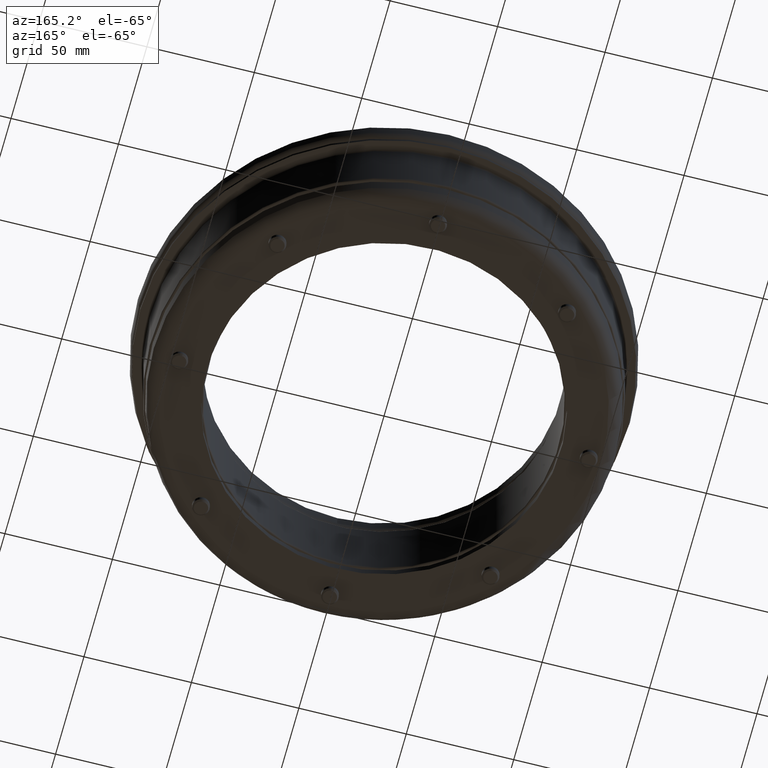
[diagram: clean part render]
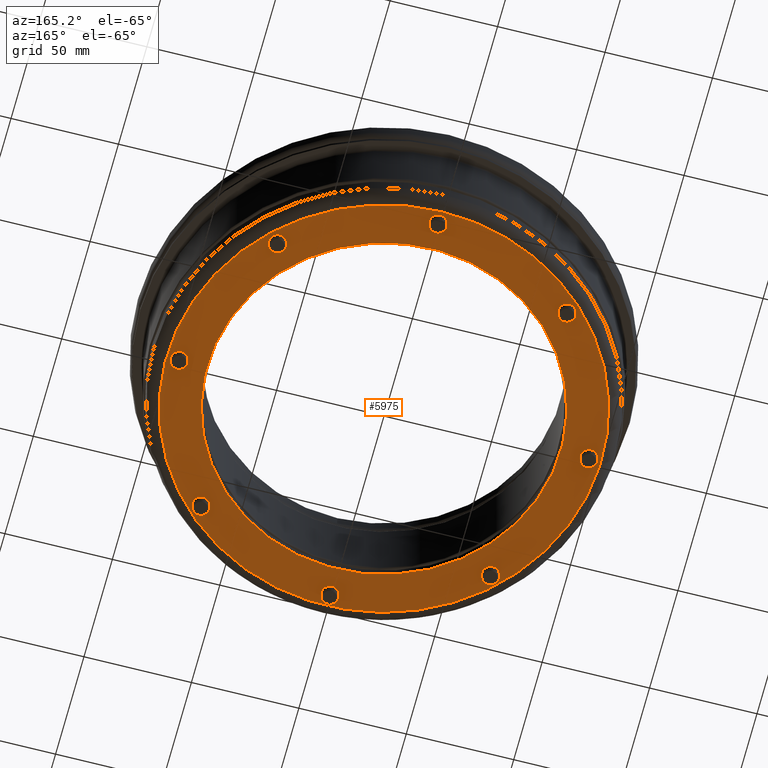
[diagram: same view with one face highlighted and labeled with its STEP entity id]
A machine part, auxiliary view. The second image highlights one B-rep face of the part: STEP entity #5975.
In plain terms, the highlighted planar face has unit normal (-0, -0, -1).
Its self-contained STEP definition (entity closure, byte-faithful):
#381=FACE_BOUND('',#1303,.T.);
#382=FACE_BOUND('',#1304,.T.);
#383=FACE_BOUND('',#1305,.T.);
#384=FACE_BOUND('',#1306,.T.);
#385=FACE_BOUND('',#1307,.T.);
#386=FACE_BOUND('',#1308,.T.);
#387=FACE_BOUND('',#1309,.T.);
#388=FACE_BOUND('',#1310,.T.);
#389=FACE_BOUND('',#1311,.T.);
#528=PLANE('',#6554);
#910=FACE_OUTER_BOUND('',#1302,.T.);
#1302=EDGE_LOOP('',(#5536,#5537));
#1303=EDGE_LOOP('',(#5538));
#1304=EDGE_LOOP('',(#5539));
#1305=EDGE_LOOP('',(#5540));
#1306=EDGE_LOOP('',(#5541));
#1307=EDGE_LOOP('',(#5542));
#1308=EDGE_LOOP('',(#5543));
#1309=EDGE_LOOP('',(#5544));
#1310=EDGE_LOOP('',(#5545));
#1311=EDGE_LOOP('',(#5546));
#2459=CIRCLE('',#6525,4.);
#2461=CIRCLE('',#6528,4.);
#2463=CIRCLE('',#6531,4.);
#2465=CIRCLE('',#6534,4.);
#2467=CIRCLE('',#6537,4.);
#2469=CIRCLE('',#6540,4.);
#2471=CIRCLE('',#6543,4.);
#2473=CIRCLE('',#6546,4.);
#2476=CIRCLE('',#6550,101.165660651965);
#2477=CIRCLE('',#6551,101.165660651965);
#2480=CIRCLE('',#6555,82.3);
#3033=VERTEX_POINT('',#10623);
#3035=VERTEX_POINT('',#10629);
#3037=VERTEX_POINT('',#10635);
#3039=VERTEX_POINT('',#10641);
#3041=VERTEX_POINT('',#10647);
#3043=VERTEX_POINT('',#10653);
#3045=VERTEX_POINT('',#10659);
#3047=VERTEX_POINT('',#10665);
#3050=VERTEX_POINT('',#10672);
#3051=VERTEX_POINT('',#10674);
#3053=VERTEX_POINT('',#10681);
#3868=EDGE_CURVE('',#3033,#3033,#2459,.T.);
#3871=EDGE_CURVE('',#3035,#3035,#2461,.T.);
#3874=EDGE_CURVE('',#3037,#3037,#2463,.T.);
#3877=EDGE_CURVE('',#3039,#3039,#2465,.T.);
#3880=EDGE_CURVE('',#3041,#3041,#2467,.T.);
#3883=EDGE_CURVE('',#3043,#3043,#2469,.T.);
#3886=EDGE_CURVE('',#3045,#3045,#2471,.T.);
#3889=EDGE_CURVE('',#3047,#3047,#2473,.T.);
#3892=EDGE_CURVE('',#3050,#3051,#2476,.T.);
#3893=EDGE_CURVE('',#3051,#3050,#2477,.T.);
#3896=EDGE_CURVE('',#3053,#3053,#2480,.F.);
#5536=ORIENTED_EDGE('',*,*,#3893,.F.);
#5537=ORIENTED_EDGE('',*,*,#3892,.F.);
#5538=ORIENTED_EDGE('',*,*,#3868,.T.);
#5539=ORIENTED_EDGE('',*,*,#3871,.T.);
#5540=ORIENTED_EDGE('',*,*,#3874,.T.);
#5541=ORIENTED_EDGE('',*,*,#3877,.T.);
#5542=ORIENTED_EDGE('',*,*,#3880,.T.);
#5543=ORIENTED_EDGE('',*,*,#3883,.T.);
#5544=ORIENTED_EDGE('',*,*,#3886,.T.);
#5545=ORIENTED_EDGE('',*,*,#3889,.T.);
#5546=ORIENTED_EDGE('',*,*,#3896,.T.);
#5975=ADVANCED_FACE('',(#910,#381,#382,#383,#384,#385,#386,#387,#388,#389),
#528,.T.);
#6525=AXIS2_PLACEMENT_3D('',#10625,#7878,#7879);
#6528=AXIS2_PLACEMENT_3D('',#10631,#7885,#7886);
#6531=AXIS2_PLACEMENT_3D('',#10637,#7892,#7893);
#6534=AXIS2_PLACEMENT_3D('',#10643,#7899,#7900);
#6537=AXIS2_PLACEMENT_3D('',#10649,#7906,#7907);
#6540=AXIS2_PLACEMENT_3D('',#10655,#7913,#7914);
#6543=AXIS2_PLACEMENT_3D('',#10661,#7920,#7921);
#6546=AXIS2_PLACEMENT_3D('',#10667,#7927,#7928);
#6550=AXIS2_PLACEMENT_3D('',#10675,#7935,#7936);
#6551=AXIS2_PLACEMENT_3D('',#10676,#7937,#7938);
#6554=AXIS2_PLACEMENT_3D('',#10680,#7943,#7944);
#6555=AXIS2_PLACEMENT_3D('',#10682,#7945,#7946);
#7878=DIRECTION('center_axis',(-3.48336438347503E-16,1.,0.));
#7879=DIRECTION('ref_axis',(-0.707106781186547,1.03095481261491E-16,-0.707106781186548));
#7885=DIRECTION('center_axis',(-3.48336438347503E-16,1.,0.));
#7886=DIRECTION('ref_axis',(1.38777878078145E-16,3.51989990342365E-16,-1.));
#7892=DIRECTION('center_axis',(-3.48336438347503E-16,1.,0.));
#7893=DIRECTION('ref_axis',(0.707106781186548,6.00884499423238E-16,-0.707106781186547));
#7899=DIRECTION('center_axis',(-3.48336438347503E-16,1.,0.));
#7900=DIRECTION('ref_axis',(1.,7.03979980684729E-16,1.38777878078145E-16));
#7906=DIRECTION('center_axis',(-3.48336438347503E-16,1.,0.));
#7907=DIRECTION('ref_axis',(0.707106781186547,6.00884499423238E-16,0.707106781186548));
#7913=DIRECTION('center_axis',(-3.48336438347503E-16,1.,0.));
#7914=DIRECTION('ref_axis',(0.,3.51989990342365E-16,1.));
#7920=DIRECTION('center_axis',(-3.48336438347503E-16,1.,0.));
#7921=DIRECTION('ref_axis',(-0.707106781186548,1.03095481261491E-16,0.707106781186547));
#7927=DIRECTION('center_axis',(-3.48336438347503E-16,1.,0.));
#7928=DIRECTION('ref_axis',(-1.,0.,0.));
#7935=DIRECTION('center_axis',(-3.48336438347503E-16,1.,0.));
#7936=DIRECTION('ref_axis',(1.,3.48336438347503E-16,1.22464679914735E-16));
#7937=DIRECTION('center_axis',(-3.48336438347503E-16,1.,0.));
#7938=DIRECTION('ref_axis',(1.,3.48336438347503E-16,1.22464679914735E-16));
#7943=DIRECTION('center_axis',(3.48336438347503E-16,-1.,0.));
#7944=DIRECTION('ref_axis',(0.,0.,-1.));
#7945=DIRECTION('center_axis',(3.48336438347503E-16,-1.,0.));
#7946=DIRECTION('ref_axis',(-1.,-3.51989990342365E-16,0.));
#10623=CARTESIAN_POINT('',(-16.0088491223318,-4.00000000000001,70.2157033718242));
#10625=CARTESIAN_POINT('Origin',(-18.837276247078,-4.00000000000001,67.387276247078));
#10629=CARTESIAN_POINT('',(-46.75,-4.,3.99999999999998));
#10631=CARTESIAN_POINT('Origin',(-46.75,-4.,-1.9171528355372E-14));
#10635=CARTESIAN_POINT('',(-21.6657033718242,-3.99999999999996,-64.5588491223318));
#10637=CARTESIAN_POINT('Origin',(-18.837276247078,-3.99999999999996,-67.387276247078));
#10641=CARTESIAN_POINT('',(44.55,-3.99999999999993,-95.3));
#10643=CARTESIAN_POINT('Origin',(48.55,-3.99999999999993,-95.3));
#10647=CARTESIAN_POINT('',(113.108849122332,-3.99999999999992,-70.2157033718242));
#10649=CARTESIAN_POINT('Origin',(115.937276247078,-3.99999999999991,-67.387276247078));
#10653=CARTESIAN_POINT('',(143.85,-3.99999999999993,-4.));
#10655=CARTESIAN_POINT('Origin',(143.85,-3.99999999999993,1.40795996136946E-15));
#10659=CARTESIAN_POINT('',(118.765703371824,-3.99999999999997,64.5588491223318));
#10661=CARTESIAN_POINT('Origin',(115.937276247078,-3.99999999999997,67.387276247078));
#10665=CARTESIAN_POINT('',(52.55,-4.,95.3));
#10667=CARTESIAN_POINT('Origin',(48.55,-4.,95.3));
#10672=CARTESIAN_POINT('',(48.55,-3.99999999999996,-101.165660651965));
#10674=CARTESIAN_POINT('',(-52.6156606519652,-4.,0.));
#10675=CARTESIAN_POINT('Origin',(48.55,-3.99999999999996,0.));
#10676=CARTESIAN_POINT('Origin',(48.55,-3.99999999999996,0.));
#10680=CARTESIAN_POINT('Origin',(-56.5907337370299,-4.,0.));
#10681=CARTESIAN_POINT('',(130.85,-3.99999999999994,1.00788431569827E-14));
#10682=CARTESIAN_POINT('Origin',(48.55,-3.99999999999996,0.));